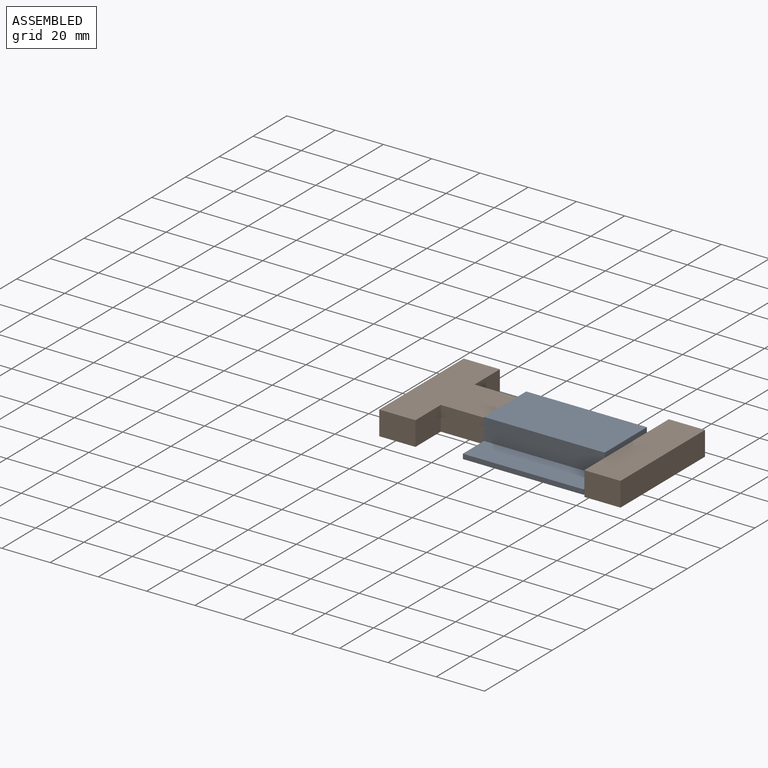
[diagram: assembled view]
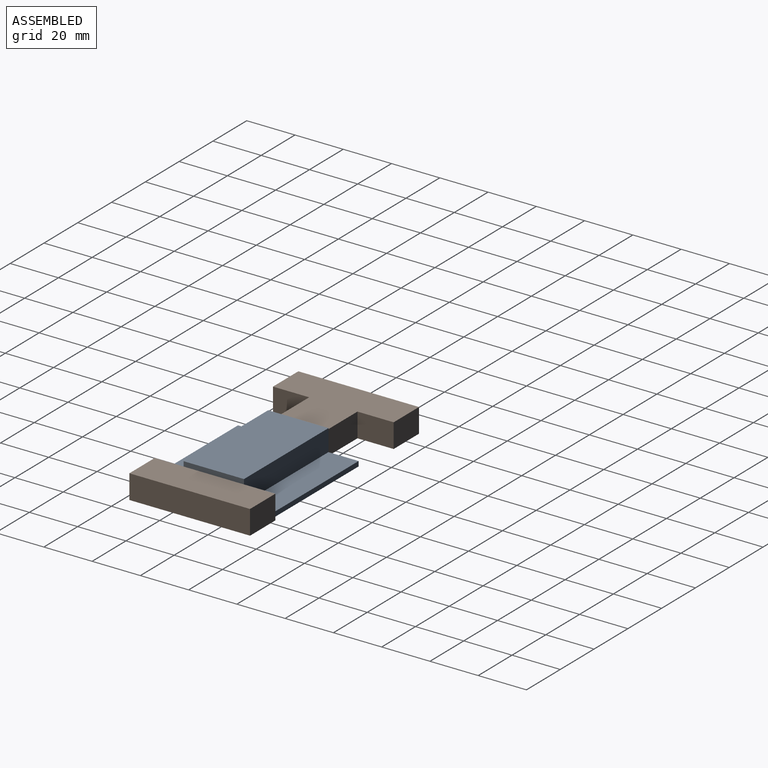
[diagram: assembled view, second angle]
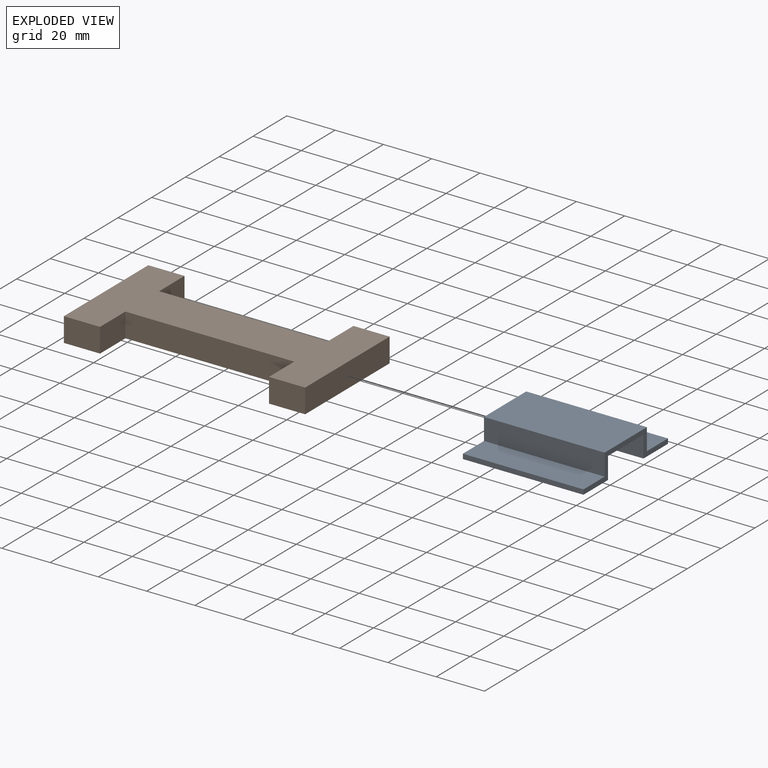
[diagram: exploded view]
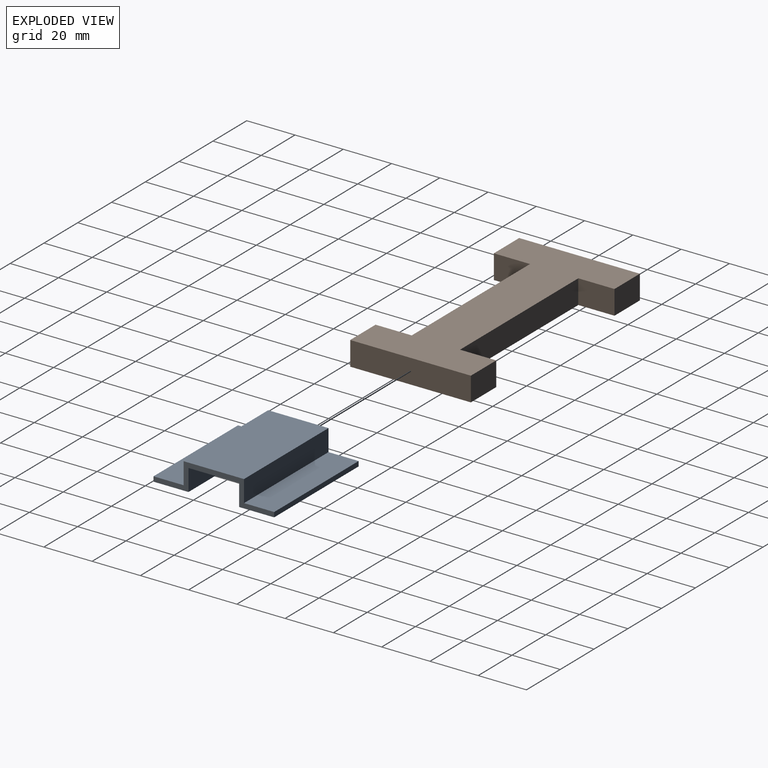
[diagram: exploded view, second angle]
ASSEMBLY  parts=2 mates=2
PART A: 14 faces, bbox 50x50x11 mm
  f0: plane 50x2mm, normal (0,-1,0), area 100mm2, adj f1,f3,f8,f13
  f1: plane 50x11mm, normal (-1,0,0), area 136mm2, adj f0,f2,f4,f5,f6,f7,f8,f9
  f2: plane 50x2mm, normal (0,1,0), area 100mm2, adj f1,f3,f4,f9
  f3: plane 50x11mm, normal (1,0,0), area 136mm2, adj f0,f2,f4,f5,f6,f7,f8,f9
  f4: plane 50x14.5mm, normal (0,0,-1), area 725mm2, adj f1,f2,f3,f5
  f5: plane 50x9mm, normal (0,-1,0), area 450mm2, adj f1,f3,f4,f6
  f6: plane 50x21mm, normal (0,0,-1), area 1050mm2, adj f1,f3,f5,f7
  f7: plane 50x9mm, normal (0,1,0), area 450mm2, adj f1,f3,f6,f8
  f8: plane 50x14.5mm, normal (0,0,-1), area 725mm2, adj f0,f1,f3,f7
  f9: plane 50x12.5mm, normal (0,0,1), area 625mm2, adj f1,f2,f3,f10
  f10: plane 50x9mm, normal (0,1,0), area 450mm2, adj f1,f3,f9,f11
  f11: plane 50x25mm, normal (0,0,1), area 1250mm2, adj f1,f3,f10,f12
  f12: plane 50x9mm, normal (0,-1,0), area 450mm2, adj f1,f3,f11,f13
  f13: plane 50x12.5mm, normal (0,0,1), area 625mm2, adj f0,f1,f3,f12
PART B: 14 faces, bbox 100x10x50 mm
  f0: plane 15x10mm, normal (0,0,1), area 150mm2, adj f2,f3,f6,f11
  f1: plane 15x10mm, normal (0,0,-1), area 150mm2, adj f2,f3,f6,f8
  f2: plane 100x50mm, normal (0,-1,0), area 2900mm2, adj f0,f1,f4,f5,f6,f7,f8,f9
  f3: plane 100x50mm, normal (0,1,0), area 2900mm2, adj f0,f1,f4,f5,f6,f7,f8,f9
  f4: plane 50x10mm, normal (1,0,0), area 500mm2, adj f2,f3,f5,f7
  f5: plane 15x10mm, normal (0,0,1), area 150mm2, adj f2,f3,f4,f13
  f6: plane 50x10mm, normal (-1,0,0), area 500mm2, adj f0,f1,f2,f3
  f7: plane 15x10mm, normal (0,0,-1), area 150mm2, adj f2,f3,f4,f9
  f8: plane 15x10mm, normal (1,0,0), area 150mm2, adj f1,f2,f3,f10
  f9: plane 15x10mm, normal (-1,0,0), area 150mm2, adj f2,f3,f7,f10
  f10: plane 70x10mm, normal (0,0,-1), area 700mm2, adj f2,f3,f8,f9
  f11: plane 15x10mm, normal (1,0,0), area 150mm2, adj f0,f2,f3,f12
  f12: plane 70x10mm, normal (0,0,1), area 700mm2, adj f2,f3,f11,f13
  f13: plane 15x10mm, normal (-1,0,0), area 150mm2, adj f2,f3,f5,f12
PLACE A t=(15.39,6.58,-4.8)mm fixed
PLACE B rot(axis=(1,0,0),90deg) t=(5.39,9.22,-0.8)mm
MATE slider B.f8 <-> A.f1  axis (1,0,0) through (-29.61,19.22,4.2)mm
MATE planar B.f3 <-> A.f6  axis (0,0,1) through (5.39,9.22,4.2)mm
